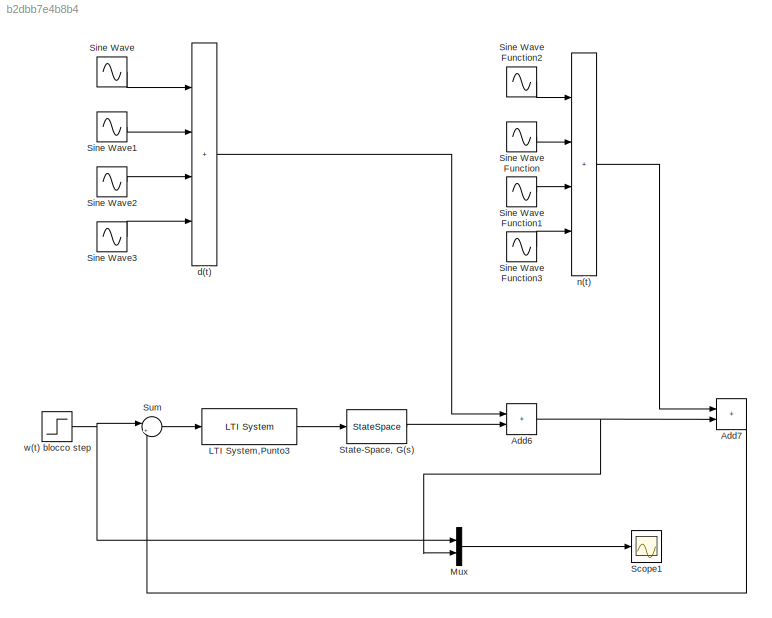
MODEL slx_b2dbb7e4b8b4
KIND model
CONFIG AbsTol = auto
CONFIG EnableMultiTasking = off
CONFIG FixedStep = 1e-7
CONFIG MaxStep = auto
CONFIG MinStep = auto
CONFIG RelTol = 1e-3
CONFIG SampleTimeConstraint = Unconstrained
CONFIG SolverName = FixedStepAuto
CONFIG StartTime = 0.0
CONFIG StopTime = 60
BLOCK [Sum] Add6
  IconShape = rectangular
BLOCK [Sum] Add7
  IconShape = rectangular
BLOCK [Reference] LTI System,Punto3  REF=cstblocks/LTI System
  SourceBlock = cstblocks/LTI System
  SourceType = LTI Block
BLOCK [Mux] Mux
  DisplayOption = bar
  Inputs = 2
BLOCK [Scope] Scope1
  ActiveDisplayYMaximum = 3.4959386286082776
  ActiveDisplayYMinimum = 2.3064084257449133
  DataLogging = on
  DataLoggingSaveFormat = Structure With Time
  DataLoggingVariableName = sim_out
  Floating = off
  GraphicalSettings = {"AxesScalingProperties":{"AlignXAxis":"Center","AlignYAxis":"Center","AutoScaleXAxisLimits":false,"AxesScaling":"Manual","AxesScalingNumUpdates":10,"ExpandOnly":true,"ScaleAxesLimitsAtStop":false,"XAxisDataRange":100,"YAxisDataRange":80},"Bilevel":{"AutoStateLevel":true,"Enabled":true,"HighStateLevel":2.3,"LowStateLevel":0,"LowerReferenceLevel":10,"MidReferenceLevel":50,"SettleSeek":0.02,"ShowAbe...<+2854ch>
  MultipleDisplayCache = [{"MaxYLimMag":4.7262239223174713,"MaxYLimReal":3.4959386286082776,"MinYLimMag":0,"MinYLimReal":2.3064084257449133,"PlotAsMagnitudePhase":false,"ShowGrid":true,"ShowLegend":false,"Title":"%<SignalLabel>","YLabel":""}]
  NumInputPorts = 1
  ScopeFrameLocation = window
  WasSavedAsWebScope = on
  WindowPosition = [168.000000,84.000000,560.000000,504.000000,]
BLOCK [Sin] Sine Wave
  Amplitude = 1.5
  Frequency = 0.08
  SampleTime = 0
BLOCK [Sin] Sine Wave Function
  Amplitude = 0
  Frequency = 10e4
  SampleTime = 0
  TimeSource = Use external signal
BLOCK [Sin] Sine Wave Function1
  Amplitude = 0
  Frequency = 15e4
  SampleTime = 0
  TimeSource = Use external signal
BLOCK [Sin] Sine Wave Function2
  Amplitude = 0
  Frequency = 5e4
  SampleTime = 0
  TimeSource = Use external signal
BLOCK [Sin] Sine Wave Function3
  Amplitude = 0
  Frequency = 20e4
  SampleTime = 0
  TimeSource = Use external signal
BLOCK [Sin] Sine Wave1
  Amplitude = 1.5
  Frequency = 0.16
  SampleTime = 0
BLOCK [Sin] Sine Wave2
  Amplitude = 1.5
  Frequency = 0.24
  SampleTime = 0
BLOCK [Sin] Sine Wave3
  Amplitude = 1.5
  Frequency = 0.32
  SampleTime = 0
BLOCK [StateSpace] State-Space, G(s)
  A = A
  B = B
  C = C
  D = D
  InitialCondition = [0 0]
BLOCK [Sum] Sum
  Inputs = |+-
BLOCK [Sum] d(t)
  IconShape = rectangular
  Inputs = ++++
BLOCK [Sum] n(t)
  IconShape = rectangular
  Inputs = ++++
BLOCK [Step] w(t) blocco step
  After = 4
  SampleTime = 0
  Time = 0
NET Add6:1 -> Add7:2, Mux:2
LINE Add7:1 -> Sum:2
LINE LTI System,Punto3:1 -> State-Space, G(s):1
LINE Mux:1 -> Scope1:1
LINE Sine Wave Function1:1 -> n(t):3
LINE Sine Wave Function2:1 -> n(t):1
LINE Sine Wave Function3:1 -> n(t):4
LINE Sine Wave Function:1 -> n(t):2
LINE Sine Wave1:1 -> d(t):2
LINE Sine Wave2:1 -> d(t):3
LINE Sine Wave3:1 -> d(t):4
LINE Sine Wave:1 -> d(t):1
LINE State-Space, G(s):1 -> Add6:2
LINE Sum:1 -> LTI System,Punto3:1
LINE d(t):1 -> Add6:1
LINE n(t):1 -> Add7:1
NET w(t) blocco step:1 -> Mux:1, Sum:1
note: NET lines group one-source signal fan-out (src -> all destinations, sorted); 1:1 wires keep LINE
